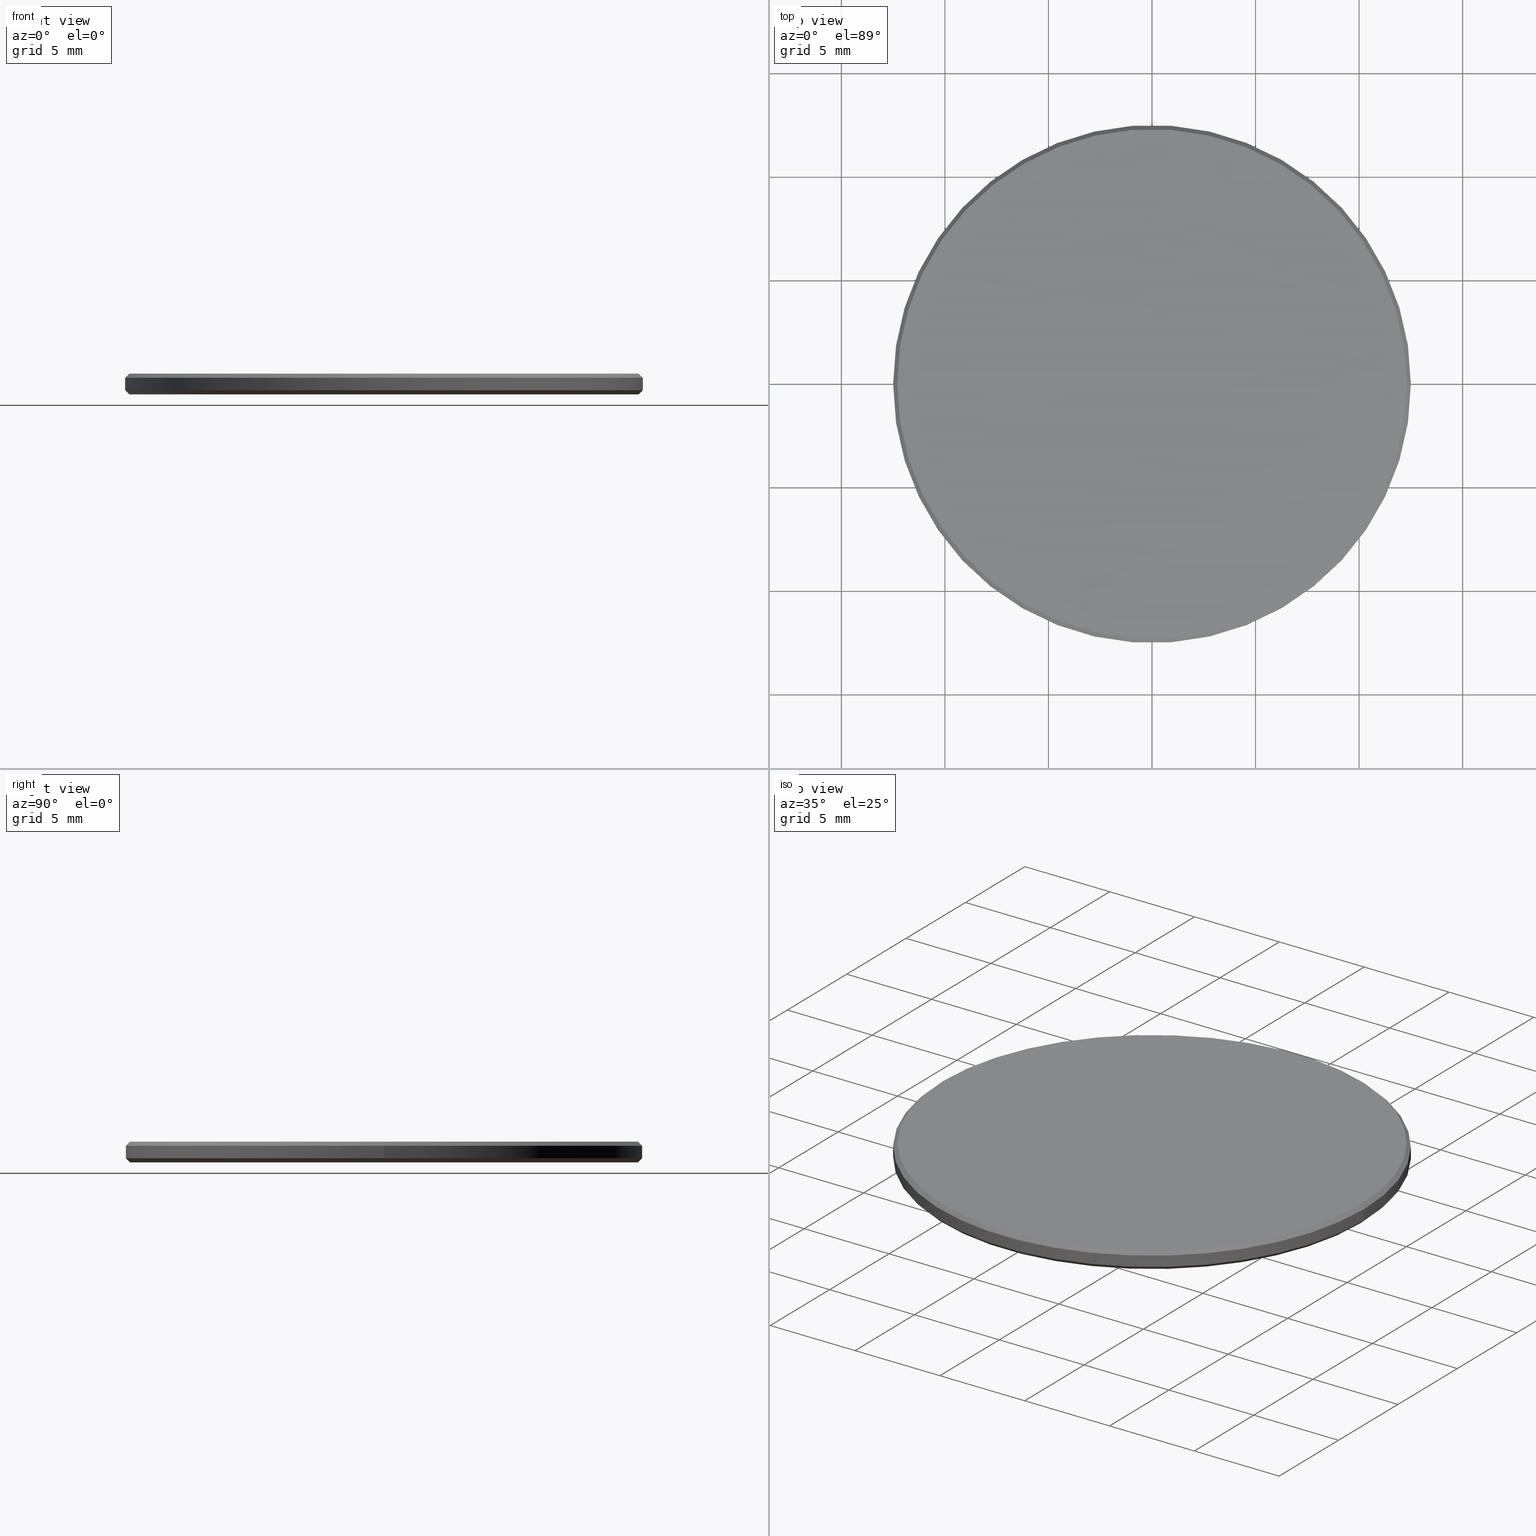
[diagram: canonical four-view strip — front | top / right | iso, engineering-drawing reading convention]
A machine part, canonical four-view strip (front | top / right | iso — engineering-drawing reading convention). The complete STEP part file that produces these views, byte-faithful:
ISO-10303-21;
HEADER;
FILE_DESCRIPTION (( 'STEP AP214' ),
    '1' );
FILE_NAME ('GNIF-050-5300-D25.STEP',
    '2024-07-19T14:27:38',
    ( '' ),
    ( '' ),
    'SwSTEP 2.0',
    'SolidWorks 2022',
    '' );
FILE_SCHEMA (( 'AUTOMOTIVE_DESIGN' ));
ENDSEC;

DATA;
#1 = VECTOR ( 'NONE', #26, 1000.000000000000000 ) ;
#2 = ADVANCED_FACE ( 'NONE', ( #158 ), #50, .T. ) ;
#3 = PLANE ( 'NONE',  #133 ) ;
#4 = CARTESIAN_POINT ( 'NONE',  ( 0.000000000000000000, 0.000000000000000000, 1.000000000000000000 ) ) ;
#5 = LINE ( 'NONE', #182, #164 ) ;
#6 = CYLINDRICAL_SURFACE ( 'NONE', #224, 12.50000000000000000 ) ;
#7 = SURFACE_SIDE_STYLE ('',( #43 ) ) ;
#8 = ORIENTED_EDGE ( 'NONE', *, *, #12, .T. ) ;
#9 =( NAMED_UNIT ( * ) PLANE_ANGLE_UNIT ( ) SI_UNIT ( $, .RADIAN. ) );
#10 = ADVANCED_FACE ( 'NONE', ( #82 ), #204, .T. ) ;
#11 = DIRECTION ( 'NONE',  ( -0.000000000000000000, -0.000000000000000000, -1.000000000000000000 ) ) ;
#12 = EDGE_CURVE ( 'NONE', #104, #81, #191, .T. ) ;
#13 = ORIENTED_EDGE ( 'NONE', *, *, #45, .F. ) ;
#14 = CARTESIAN_POINT ( 'NONE',  ( 0.000000000000000000, 0.000000000000000000, 0.1999999999999987899 ) ) ;
#15 = ORIENTED_EDGE ( 'NONE', *, *, #146, .F. ) ;
#16 = MECHANICAL_DESIGN_GEOMETRIC_PRESENTATION_REPRESENTATION (  '', ( #40 ), #92 ) ;
#17 = DIRECTION ( 'NONE',  ( 1.000000000000000000, 0.000000000000000000, 0.000000000000000000 ) ) ;
#18 = CIRCLE ( 'NONE', #52, 12.29999999999999893 ) ;
#19 = CLOSED_SHELL ( 'NONE', ( #180, #225, #145, #2, #199, #208, #10, #20 ) ) ;
#20 = ADVANCED_FACE ( 'NONE', ( #174 ), #89, .T. ) ;
#21 = EDGE_LOOP ( 'NONE', ( #8, #80 ) ) ;
#22 = DIRECTION ( 'NONE',  ( 0.7071067811865566766, 8.659560562355045024E-17, -0.7071067811865383579 ) ) ;
#23 = DIRECTION ( 'NONE',  ( 1.000000000000000000, 0.000000000000000000, -0.000000000000000000 ) ) ;
#24 = FACE_OUTER_BOUND ( 'NONE', #21, .T. ) ;
#25 = AXIS2_PLACEMENT_3D ( 'NONE', #207, #183, #23 ) ;
#26 = DIRECTION ( 'NONE',  ( -0.000000000000000000, -0.000000000000000000, -1.000000000000000000 ) ) ;
#27 = DIRECTION ( 'NONE',  ( -0.7071067811865566766, 0.000000000000000000, -0.7071067811865383579 ) ) ;
#28 = CARTESIAN_POINT ( 'NONE',  ( 12.50000000000000000, 0.000000000000000000, 0.1999999999999987899 ) ) ;
#29 = AXIS2_PLACEMENT_3D ( 'NONE', #39, #110, #131 ) ;
#30 = PRODUCT_CONTEXT ( 'NONE', #176, 'mechanical' ) ;
#31 = EDGE_CURVE ( 'NONE', #33, #44, #195, .T. ) ;
#32 = PRODUCT_RELATED_PRODUCT_CATEGORY ( 'part', '', ( #72 ) ) ;
#33 = VERTEX_POINT ( 'NONE', #37 ) ;
#34 = CARTESIAN_POINT ( 'NONE',  ( 0.000000000000000000, 0.000000000000000000, 0.000000000000000000 ) ) ;
#35 = ORIENTED_EDGE ( 'NONE', *, *, #161, .F. ) ;
#36 = EDGE_LOOP ( 'NONE', ( #213, #233, #86, #35 ) ) ;
#37 = CARTESIAN_POINT ( 'NONE',  ( 12.50000000000000000, 1.530808498934191521E-15, 0.8000000000000029310 ) ) ;
#38 = CARTESIAN_POINT ( 'NONE',  ( 0.000000000000000000, 0.000000000000000000, 1.000000000000000000 ) ) ;
#39 = CARTESIAN_POINT ( 'NONE',  ( 0.000000000000000000, 0.000000000000000000, 0.1999999999999987899 ) ) ;
#40 = STYLED_ITEM ( 'NONE', ( #119 ), #102 ) ;
#41 = CARTESIAN_POINT ( 'NONE',  ( 0.000000000000000000, 0.000000000000000000, 0.1999999999999987899 ) ) ;
#42 = DIRECTION ( 'NONE',  ( 0.000000000000000000, 0.000000000000000000, -1.000000000000000000 ) ) ;
#43 = SURFACE_STYLE_FILL_AREA ( #162 ) ;
#44 = VERTEX_POINT ( 'NONE', #121 ) ;
#45 = EDGE_CURVE ( 'NONE', #216, #157, #189, .T. ) ;
#46 = ORIENTED_EDGE ( 'NONE', *, *, #167, .F. ) ;
#47 =( NAMED_UNIT ( * ) SI_UNIT ( $, .STERADIAN. ) SOLID_ANGLE_UNIT ( ) );
#48 = ORIENTED_EDGE ( 'NONE', *, *, #123, .T. ) ;
#49 = UNCERTAINTY_MEASURE_WITH_UNIT (LENGTH_MEASURE( 1.000000000000000082E-05 ), #219, 'distance_accuracy_value', 'NONE');
#50 = CYLINDRICAL_SURFACE ( 'NONE', #166, 12.50000000000000000 ) ;
#51 = SHAPE_DEFINITION_REPRESENTATION ( #201, #228 ) ;
#52 = AXIS2_PLACEMENT_3D ( 'NONE', #98, #76, #116 ) ;
#53 = ORIENTED_EDGE ( 'NONE', *, *, #75, .F. ) ;
#54 = FILL_AREA_STYLE_COLOUR ( '', #118 ) ;
#55 = LINE ( 'NONE', #165, #58 ) ;
#56 = EDGE_CURVE ( 'NONE', #90, #157, #137, .T. ) ;
#57 = AXIS2_PLACEMENT_3D ( 'NONE', #41, #153, #163 ) ;
#58 = VECTOR ( 'NONE', #231, 1000.000000000000114 ) ;
#59 = CARTESIAN_POINT ( 'NONE',  ( 0.000000000000000000, 0.000000000000000000, 0.8000000000000029310 ) ) ;
#60 = CARTESIAN_POINT ( 'NONE',  ( -12.30000000000000249, 1.518562030942718164E-15, 0.000000000000000000 ) ) ;
#61 = AXIS2_PLACEMENT_3D ( 'NONE', #64, #63, #108 ) ;
#62 = SURFACE_STYLE_USAGE ( .BOTH. , #7 ) ;
#63 = DIRECTION ( 'NONE',  ( 0.000000000000000000, 0.000000000000000000, 1.000000000000000000 ) ) ;
#64 = CARTESIAN_POINT ( 'NONE',  ( 0.000000000000000000, 0.000000000000000000, 1.000000000000000000 ) ) ;
#65 =( LENGTH_UNIT ( ) NAMED_UNIT ( * ) SI_UNIT ( .MILLI., .METRE. ) );
#66 = UNCERTAINTY_MEASURE_WITH_UNIT (LENGTH_MEASURE( 1.000000000000000082E-05 ), #65, 'distance_accuracy_value', 'NONE');
#67 = EDGE_LOOP ( 'NONE', ( #160, #148, #127, #103 ) ) ;
#68 = CONICAL_SURFACE ( 'NONE', #57, 12.50000000000000000, 0.7853981633974482790 ) ;
#69 = DIRECTION ( 'NONE',  ( 0.000000000000000000, 0.000000000000000000, -1.000000000000000000 ) ) ;
#70 = EDGE_LOOP ( 'NONE', ( #238, #122 ) ) ;
#71 = CARTESIAN_POINT ( 'NONE',  ( 0.000000000000000000, 0.000000000000000000, 0.000000000000000000 ) ) ;
#72 = PRODUCT ( 'GNIF-050-5300-D25', 'GNIF-050-5300-D25', '', ( #30 ) ) ;
#73 = EDGE_CURVE ( 'NONE', #216, #218, #188, .T. ) ;
#74 = FACE_OUTER_BOUND ( 'NONE', #70, .T. ) ;
#75 = EDGE_CURVE ( 'NONE', #157, #90, #143, .T. ) ;
#76 = DIRECTION ( 'NONE',  ( 0.000000000000000000, 0.000000000000000000, 1.000000000000000000 ) ) ;
#77 = DIRECTION ( 'NONE',  ( 0.000000000000000000, 0.000000000000000000, 1.000000000000000000 ) ) ;
#78 = AXIS2_PLACEMENT_3D ( 'NONE', #237, #69, #100 ) ;
#79 = CARTESIAN_POINT ( 'NONE',  ( -12.29999999999999893, 0.000000000000000000, 1.000000000000000000 ) ) ;
#80 = ORIENTED_EDGE ( 'NONE', *, *, #155, .T. ) ;
#81 = VERTEX_POINT ( 'NONE', #220 ) ;
#82 = FACE_OUTER_BOUND ( 'NONE', #159, .T. ) ;
#83 =( GEOMETRIC_REPRESENTATION_CONTEXT ( 3 ) GLOBAL_UNCERTAINTY_ASSIGNED_CONTEXT ( ( #49 ) ) GLOBAL_UNIT_ASSIGNED_CONTEXT ( ( #219, #9, #214 ) ) REPRESENTATION_CONTEXT ( 'NONE', 'WORKASPACE' ) );
#84 = DIRECTION ( 'NONE',  ( -0.000000000000000000, -0.000000000000000000, 1.000000000000000000 ) ) ;
#85 = DIRECTION ( 'NONE',  ( -1.000000000000000000, 0.000000000000000000, 0.000000000000000000 ) ) ;
#86 = ORIENTED_EDGE ( 'NONE', *, *, #75, .T. ) ;
#87 = CARTESIAN_POINT ( 'NONE',  ( 0.000000000000000000, 0.000000000000000000, 0.1999999999999987899 ) ) ;
#88 = CIRCLE ( 'NONE', #128, 12.50000000000000000 ) ;
#89 = CONICAL_SURFACE ( 'NONE', #99, 12.50000000000000000, 0.7853981633974482790 ) ;
#90 = VERTEX_POINT ( 'NONE', #198 ) ;
#91 = FACE_OUTER_BOUND ( 'NONE', #129, .T. ) ;
#92 =( GEOMETRIC_REPRESENTATION_CONTEXT ( 3 ) GLOBAL_UNCERTAINTY_ASSIGNED_CONTEXT ( ( #124 ) ) GLOBAL_UNIT_ASSIGNED_CONTEXT ( ( #206, #139, #141 ) ) REPRESENTATION_CONTEXT ( 'NONE', 'WORKASPACE' ) );
#93 = EDGE_CURVE ( 'NONE', #218, #90, #55, .T. ) ;
#94 = CARTESIAN_POINT ( 'NONE',  ( 12.30000000000000249, 0.000000000000000000, 0.000000000000000000 ) ) ;
#95 = CONICAL_SURFACE ( 'NONE', #107, 12.29999999999999893, 0.7853981633974612686 ) ;
#96 = PRESENTATION_LAYER_ASSIGNMENT (  '', '', ( #203 ) ) ;
#97 = CARTESIAN_POINT ( 'NONE',  ( -12.29999999999999893, 0.000000000000000000, 1.000000000000000000 ) ) ;
#98 = CARTESIAN_POINT ( 'NONE',  ( 0.000000000000000000, 0.000000000000000000, 1.000000000000000000 ) ) ;
#99 = AXIS2_PLACEMENT_3D ( 'NONE', #14, #84, #142 ) ;
#100 = DIRECTION ( 'NONE',  ( -1.000000000000000000, 0.000000000000000000, 0.000000000000000000 ) ) ;
#101 = APPLICATION_PROTOCOL_DEFINITION ( 'draft international standard', 'automotive_design', 1998, #134 ) ;
#102 = MANIFOLD_SOLID_BREP ( '����1', #19 ) ;
#103 = ORIENTED_EDGE ( 'NONE', *, *, #56, .T. ) ;
#104 = VERTEX_POINT ( 'NONE', #97 ) ;
#105 = ORIENTED_EDGE ( 'NONE', *, *, #155, .F. ) ;
#106 = SURFACE_STYLE_FILL_AREA ( #171 ) ;
#107 = AXIS2_PLACEMENT_3D ( 'NONE', #38, #169, #85 ) ;
#108 = DIRECTION ( 'NONE',  ( 1.000000000000000000, 0.000000000000000000, 0.000000000000000000 ) ) ;
#109 = SURFACE_STYLE_USAGE ( .BOTH. , #197 ) ;
#110 = DIRECTION ( 'NONE',  ( -0.000000000000000000, -0.000000000000000000, 1.000000000000000000 ) ) ;
#111 = AXIS2_PLACEMENT_3D ( 'NONE', #34, #190, #173 ) ;
#112 = AXIS2_PLACEMENT_3D ( 'NONE', #149, #196, #212 ) ;
#113 = ORIENTED_EDGE ( 'NONE', *, *, #73, .F. ) ;
#114 = DIRECTION ( 'NONE',  ( -1.000000000000000000, 0.000000000000000000, 0.000000000000000000 ) ) ;
#115 = LINE ( 'NONE', #229, #120 ) ;
#116 = DIRECTION ( 'NONE',  ( 1.000000000000000000, 0.000000000000000000, 0.000000000000000000 ) ) ;
#117 = DIRECTION ( 'NONE',  ( 1.000000000000000000, 0.000000000000000000, 0.000000000000000000 ) ) ;
#118 = COLOUR_RGB ( '',1.000000000000000000, 1.000000000000000000, 1.000000000000000000 ) ;
#119 = PRESENTATION_STYLE_ASSIGNMENT (( #62 ) ) ;
#120 = VECTOR ( 'NONE', #184, 1000.000000000000000 ) ;
#121 = CARTESIAN_POINT ( 'NONE',  ( -12.50000000000000000, 0.000000000000000000, 0.8000000000000029310 ) ) ;
#122 = ORIENTED_EDGE ( 'NONE', *, *, #221, .T. ) ;
#123 = EDGE_CURVE ( 'NONE', #104, #44, #187, .T. ) ;
#124 = UNCERTAINTY_MEASURE_WITH_UNIT (LENGTH_MEASURE( 1.000000000000000082E-05 ), #206, 'distance_accuracy_value', 'NONE');
#125 = ORIENTED_EDGE ( 'NONE', *, *, #123, .F. ) ;
#126 = FACE_OUTER_BOUND ( 'NONE', #177, .T. ) ;
#127 = ORIENTED_EDGE ( 'NONE', *, *, #161, .T. ) ;
#128 = AXIS2_PLACEMENT_3D ( 'NONE', #59, #42, #154 ) ;
#129 = EDGE_LOOP ( 'NONE', ( #170, #172, #53, #13 ) ) ;
#130 =( NAMED_UNIT ( * ) PLANE_ANGLE_UNIT ( ) SI_UNIT ( $, .RADIAN. ) );
#131 = DIRECTION ( 'NONE',  ( 1.000000000000000000, 0.000000000000000000, 0.000000000000000000 ) ) ;
#132 = COLOUR_RGB ( '',1.000000000000000000, 1.000000000000000000, 1.000000000000000000 ) ;
#133 = AXIS2_PLACEMENT_3D ( 'NONE', #209, #77, #230 ) ;
#134 = APPLICATION_CONTEXT ( 'automotive_design' ) ;
#135 = EDGE_CURVE ( 'NONE', #33, #157, #115, .T. ) ;
#136 = FILL_AREA_STYLE_COLOUR ( '', #132 ) ;
#137 = CIRCLE ( 'NONE', #29, 12.50000000000000000 ) ;
#138 = CARTESIAN_POINT ( 'NONE',  ( 12.50000000000000000, 1.530808498934191521E-15, 0.1999999999999987899 ) ) ;
#139 =( NAMED_UNIT ( * ) PLANE_ANGLE_UNIT ( ) SI_UNIT ( $, .RADIAN. ) );
#140 = CARTESIAN_POINT ( 'NONE',  ( 0.000000000000000000, 0.000000000000000000, 0.000000000000000000 ) ) ;
#141 =( NAMED_UNIT ( * ) SI_UNIT ( $, .STERADIAN. ) SOLID_ANGLE_UNIT ( ) );
#142 = DIRECTION ( 'NONE',  ( 1.000000000000000000, 0.000000000000000000, 0.000000000000000000 ) ) ;
#143 = CIRCLE ( 'NONE', #200, 12.50000000000000000 ) ;
#144 = EDGE_LOOP ( 'NONE', ( #236, #113, #193, #194 ) ) ;
#145 = ADVANCED_FACE ( 'NONE', ( #226 ), #6, .T. ) ;
#146 = EDGE_CURVE ( 'NONE', #44, #33, #88, .T. ) ;
#147 = ORIENTED_EDGE ( 'NONE', *, *, #167, .T. ) ;
#148 = ORIENTED_EDGE ( 'NONE', *, *, #31, .T. ) ;
#149 = CARTESIAN_POINT ( 'NONE',  ( 0.000000000000000000, 0.000000000000000000, 0.8000000000000029310 ) ) ;
#150 = DIRECTION ( 'NONE',  ( 1.000000000000000000, 0.000000000000000000, 0.000000000000000000 ) ) ;
#151 = PLANE ( 'NONE',  #25 ) ;
#152 = LINE ( 'NONE', #186, #1 ) ;
#153 = DIRECTION ( 'NONE',  ( -0.000000000000000000, -0.000000000000000000, 1.000000000000000000 ) ) ;
#154 = DIRECTION ( 'NONE',  ( 1.000000000000000000, 0.000000000000000000, 0.000000000000000000 ) ) ;
#155 = EDGE_CURVE ( 'NONE', #81, #104, #18, .T. ) ;
#156 = CARTESIAN_POINT ( 'NONE',  ( 0.000000000000000000, 0.000000000000000000, 1.000000000000000000 ) ) ;
#157 = VERTEX_POINT ( 'NONE', #138 ) ;
#158 = FACE_OUTER_BOUND ( 'NONE', #67, .T. ) ;
#159 = EDGE_LOOP ( 'NONE', ( #46, #192, #48, #205 ) ) ;
#160 = ORIENTED_EDGE ( 'NONE', *, *, #135, .F. ) ;
#161 = EDGE_CURVE ( 'NONE', #44, #90, #152, .T. ) ;
#162 = FILL_AREA_STYLE ('',( #136 ) ) ;
#163 = DIRECTION ( 'NONE',  ( 1.000000000000000000, 0.000000000000000000, 0.000000000000000000 ) ) ;
#164 = VECTOR ( 'NONE', #22, 1000.000000000000000 ) ;
#165 = CARTESIAN_POINT ( 'NONE',  ( -12.50000000000000000, 1.530808498934191521E-15, 0.1999999999999987899 ) ) ;
#166 = AXIS2_PLACEMENT_3D ( 'NONE', #156, #11, #217 ) ;
#167 = EDGE_CURVE ( 'NONE', #81, #33, #5, .T. ) ;
#168 = DIRECTION ( 'NONE',  ( 0.7071067811865474617, 0.000000000000000000, 0.7071067811865474617 ) ) ;
#169 = DIRECTION ( 'NONE',  ( 0.000000000000000000, 0.000000000000000000, -1.000000000000000000 ) ) ;
#170 = ORIENTED_EDGE ( 'NONE', *, *, #221, .F. ) ;
#171 = FILL_AREA_STYLE ('',( #54 ) ) ;
#172 = ORIENTED_EDGE ( 'NONE', *, *, #93, .T. ) ;
#173 = DIRECTION ( 'NONE',  ( 1.000000000000000000, 0.000000000000000000, 0.000000000000000000 ) ) ;
#174 = FACE_OUTER_BOUND ( 'NONE', #144, .T. ) ;
#175 = MECHANICAL_DESIGN_GEOMETRIC_PRESENTATION_REPRESENTATION (  '', ( #203 ), #211 ) ;
#176 = APPLICATION_CONTEXT ( 'automotive_design' ) ;
#177 = EDGE_LOOP ( 'NONE', ( #105, #147, #15, #125 ) ) ;
#178 = AXIS2_PLACEMENT_3D ( 'NONE', #71, #179, #17 ) ;
#179 = DIRECTION ( 'NONE',  ( -0.000000000000000000, -0.000000000000000000, -1.000000000000000000 ) ) ;
#180 = ADVANCED_FACE ( 'NONE', ( #91 ), #68, .T. ) ;
#181 = PRODUCT_DEFINITION_FORMATION_WITH_SPECIFIED_SOURCE ( '�κ�', '', #72, .NOT_KNOWN. ) ;
#182 = CARTESIAN_POINT ( 'NONE',  ( 12.29999999999999893, 1.506315562951244216E-15, 1.000000000000000000 ) ) ;
#183 = DIRECTION ( 'NONE',  ( 0.000000000000000000, 0.000000000000000000, 1.000000000000000000 ) ) ;
#184 = DIRECTION ( 'NONE',  ( -0.000000000000000000, -0.000000000000000000, -1.000000000000000000 ) ) ;
#185 = CIRCLE ( 'NONE', #202, 12.30000000000000249 ) ;
#186 = CARTESIAN_POINT ( 'NONE',  ( -12.50000000000000000, 0.000000000000000000, 1.000000000000000000 ) ) ;
#187 = LINE ( 'NONE', #79, #222 ) ;
#188 = CIRCLE ( 'NONE', #178, 12.30000000000000249 ) ;
#189 = LINE ( 'NONE', #28, #240 ) ;
#190 = DIRECTION ( 'NONE',  ( 0.000000000000000000, 0.000000000000000000, 1.000000000000000000 ) ) ;
#191 = CIRCLE ( 'NONE', #61, 12.29999999999999893 ) ;
#192 = ORIENTED_EDGE ( 'NONE', *, *, #12, .F. ) ;
#193 = ORIENTED_EDGE ( 'NONE', *, *, #45, .T. ) ;
#194 = ORIENTED_EDGE ( 'NONE', *, *, #56, .F. ) ;
#195 = CIRCLE ( 'NONE', #112, 12.50000000000000000 ) ;
#196 = DIRECTION ( 'NONE',  ( 0.000000000000000000, 0.000000000000000000, -1.000000000000000000 ) ) ;
#197 = SURFACE_SIDE_STYLE ('',( #106 ) ) ;
#198 = CARTESIAN_POINT ( 'NONE',  ( -12.50000000000000000, 0.000000000000000000, 0.1999999999999987899 ) ) ;
#199 = ADVANCED_FACE ( 'NONE', ( #24 ), #3, .T. ) ;
#200 = AXIS2_PLACEMENT_3D ( 'NONE', #87, #239, #150 ) ;
#201 = PRODUCT_DEFINITION_SHAPE ( 'NONE', 'NONE',  #227 ) ;
#202 = AXIS2_PLACEMENT_3D ( 'NONE', #140, #210, #117 ) ;
#203 = STYLED_ITEM ( 'NONE', ( #234 ), #228 ) ;
#204 = CONICAL_SURFACE ( 'NONE', #78, 12.29999999999999893, 0.7853981633974612686 ) ;
#205 = ORIENTED_EDGE ( 'NONE', *, *, #31, .F. ) ;
#206 =( LENGTH_UNIT ( ) NAMED_UNIT ( * ) SI_UNIT ( .MILLI., .METRE. ) );
#207 = CARTESIAN_POINT ( 'NONE',  ( 0.000000000000000000, 0.000000000000000000, 0.000000000000000000 ) ) ;
#208 = ADVANCED_FACE ( 'NONE', ( #74 ), #151, .F. ) ;
#209 = CARTESIAN_POINT ( 'NONE',  ( 0.000000000000000000, 0.000000000000000000, 1.000000000000000000 ) ) ;
#210 = DIRECTION ( 'NONE',  ( -0.000000000000000000, -0.000000000000000000, -1.000000000000000000 ) ) ;
#211 =( GEOMETRIC_REPRESENTATION_CONTEXT ( 3 ) GLOBAL_UNCERTAINTY_ASSIGNED_CONTEXT ( ( #66 ) ) GLOBAL_UNIT_ASSIGNED_CONTEXT ( ( #65, #130, #47 ) ) REPRESENTATION_CONTEXT ( 'NONE', 'WORKASPACE' ) );
#212 = DIRECTION ( 'NONE',  ( 1.000000000000000000, 0.000000000000000000, 0.000000000000000000 ) ) ;
#213 = ORIENTED_EDGE ( 'NONE', *, *, #146, .T. ) ;
#214 =( NAMED_UNIT ( * ) SI_UNIT ( $, .STERADIAN. ) SOLID_ANGLE_UNIT ( ) );
#215 = PRODUCT_DEFINITION_CONTEXT ( 'detailed design', #134, 'design' ) ;
#216 = VERTEX_POINT ( 'NONE', #94 ) ;
#217 = DIRECTION ( 'NONE',  ( -1.000000000000000000, 0.000000000000000000, 0.000000000000000000 ) ) ;
#218 = VERTEX_POINT ( 'NONE', #60 ) ;
#219 =( LENGTH_UNIT ( ) NAMED_UNIT ( * ) SI_UNIT ( .MILLI., .METRE. ) );
#220 = CARTESIAN_POINT ( 'NONE',  ( 12.29999999999999893, 1.518562030942717967E-15, 1.000000000000000000 ) ) ;
#221 = EDGE_CURVE ( 'NONE', #218, #216, #185, .T. ) ;
#222 = VECTOR ( 'NONE', #27, 1000.000000000000000 ) ;
#223 = DIRECTION ( 'NONE',  ( -0.000000000000000000, -0.000000000000000000, -1.000000000000000000 ) ) ;
#224 = AXIS2_PLACEMENT_3D ( 'NONE', #4, #223, #114 ) ;
#225 = ADVANCED_FACE ( 'NONE', ( #126 ), #95, .T. ) ;
#226 = FACE_OUTER_BOUND ( 'NONE', #36, .T. ) ;
#227 = PRODUCT_DEFINITION ( 'δ֪', '', #181, #215 ) ;
#228 = ADVANCED_BREP_SHAPE_REPRESENTATION ( 'GNIF-050-5300-D25', ( #102, #111 ), #83 ) ;
#229 = CARTESIAN_POINT ( 'NONE',  ( 12.50000000000000000, 1.530808498934191521E-15, 1.000000000000000000 ) ) ;
#230 = DIRECTION ( 'NONE',  ( 1.000000000000000000, 0.000000000000000000, -0.000000000000000000 ) ) ;
#231 = DIRECTION ( 'NONE',  ( -0.7071067811865474617, 8.659560562354932858E-17, 0.7071067811865474617 ) ) ;
#232 = APPLICATION_PROTOCOL_DEFINITION ( 'draft international standard', 'automotive_design', 1998, #176 ) ;
#233 = ORIENTED_EDGE ( 'NONE', *, *, #135, .T. ) ;
#234 = PRESENTATION_STYLE_ASSIGNMENT (( #109 ) ) ;
#235 = PRESENTATION_LAYER_ASSIGNMENT (  '', '', ( #40 ) ) ;
#236 = ORIENTED_EDGE ( 'NONE', *, *, #93, .F. ) ;
#237 = CARTESIAN_POINT ( 'NONE',  ( 0.000000000000000000, 0.000000000000000000, 1.000000000000000000 ) ) ;
#238 = ORIENTED_EDGE ( 'NONE', *, *, #73, .T. ) ;
#239 = DIRECTION ( 'NONE',  ( -0.000000000000000000, -0.000000000000000000, 1.000000000000000000 ) ) ;
#240 = VECTOR ( 'NONE', #168, 1000.000000000000114 ) ;
ENDSEC;
END-ISO-10303-21;
